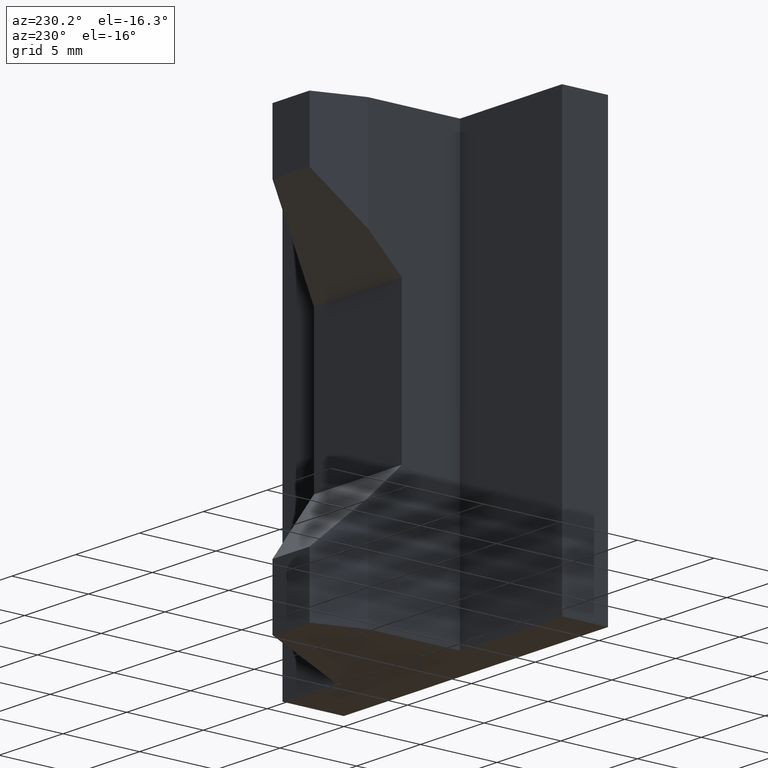
[diagram: clean part render]
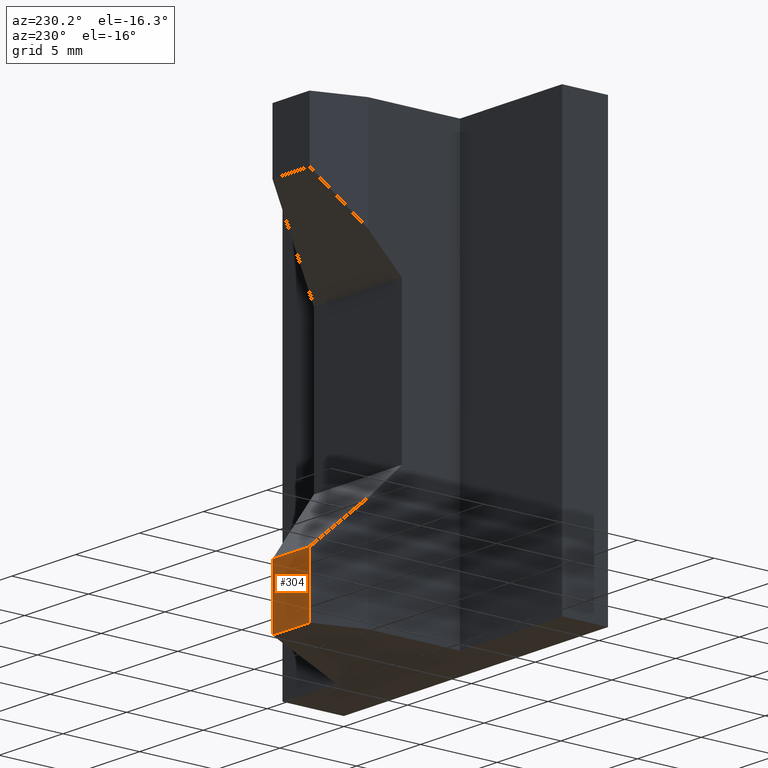
[diagram: same view with one face highlighted and labeled with its STEP entity id]
A machine part, auxiliary view. The second image highlights one B-rep face of the part: STEP entity #304.
In plain terms, the highlighted planar face has unit normal (-0, 1, 0).
Its self-contained STEP definition (entity closure, byte-faithful):
#18=FACE_OUTER_BOUND('',#34,.T.);
#34=EDGE_LOOP('',(#215,#216,#217,#218));
#53=LINE('',#449,#95);
#59=LINE('',#460,#101);
#60=LINE('',#462,#102);
#61=LINE('',#463,#103);
#95=VECTOR('',#368,10.);
#101=VECTOR('',#378,10.);
#102=VECTOR('',#379,10.);
#103=VECTOR('',#380,10.);
#136=VERTEX_POINT('',#445);
#138=VERTEX_POINT('',#448);
#141=VERTEX_POINT('',#459);
#142=VERTEX_POINT('',#461);
#165=EDGE_CURVE('',#138,#136,#53,.T.);
#171=EDGE_CURVE('',#136,#141,#59,.T.);
#172=EDGE_CURVE('',#141,#142,#60,.T.);
#173=EDGE_CURVE('',#138,#142,#61,.T.);
#215=ORIENTED_EDGE('',*,*,#165,.T.);
#216=ORIENTED_EDGE('',*,*,#171,.T.);
#217=ORIENTED_EDGE('',*,*,#172,.T.);
#218=ORIENTED_EDGE('',*,*,#173,.F.);
#288=PLANE('',#343);
#304=ADVANCED_FACE('',(#18),#288,.T.);
#343=AXIS2_PLACEMENT_3D('',#458,#376,#377);
#368=DIRECTION('',(1.,7.63974827717709E-16,-6.24044902201945E-17));
#376=DIRECTION('center_axis',(-7.63974827717709E-16,1.,0.));
#377=DIRECTION('ref_axis',(0.,0.,1.));
#378=DIRECTION('',(0.,0.,-1.));
#379=DIRECTION('',(-1.,-7.63974827717709E-16,0.));
#380=DIRECTION('',(0.,0.,-1.));
#445=CARTESIAN_POINT('',(-8.81880215351701,12.,-9.92158162899679));
#448=CARTESIAN_POINT('',(-11.7252409113013,12.,-9.92158162899679));
#449=CARTESIAN_POINT('',(-12.2126204556506,12.,-9.92158162899679));
#458=CARTESIAN_POINT('Origin',(-11.7252409113013,12.,0.));
#459=CARTESIAN_POINT('',(-8.81880215351701,12.,-13.9));
#460=CARTESIAN_POINT('',(-8.81880215351701,12.,0.));
#461=CARTESIAN_POINT('',(-11.7252409113013,12.,-13.9));
#462=CARTESIAN_POINT('',(-11.7252409113013,12.,-13.9));
#463=CARTESIAN_POINT('',(-11.7252409113013,12.,0.));